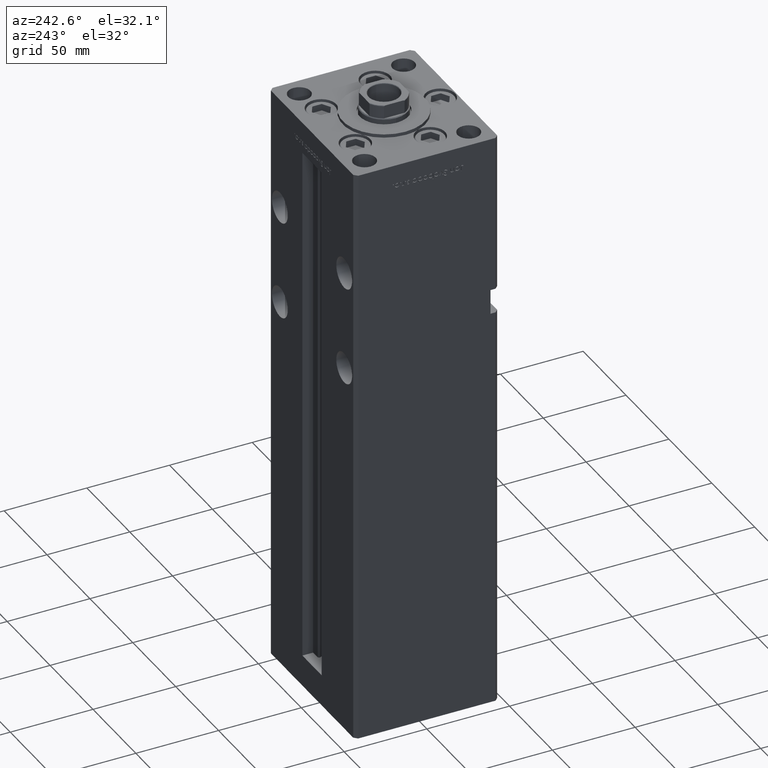
[diagram: clean part render]
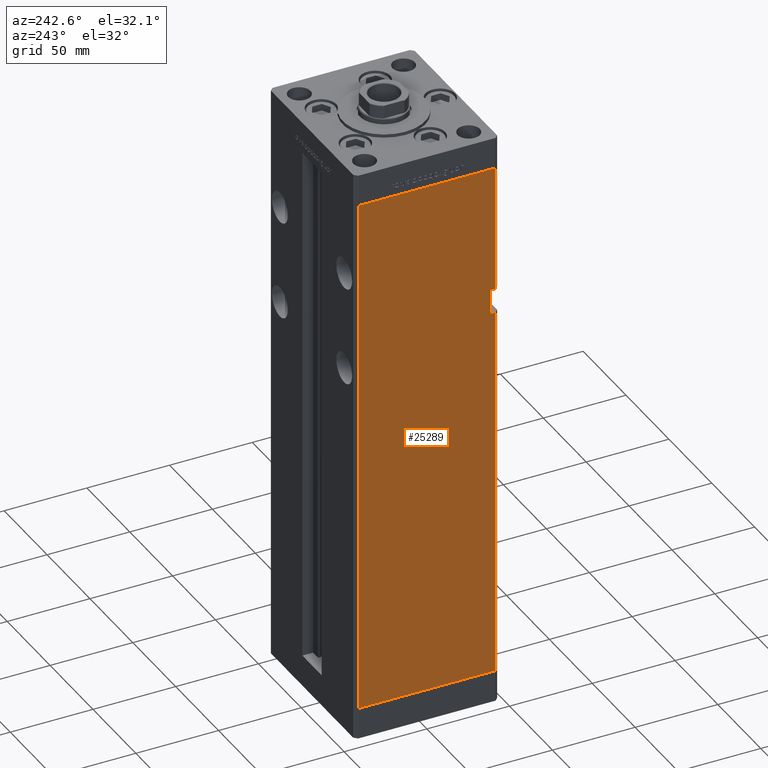
[diagram: same view with one face highlighted and labeled with its STEP entity id]
A machine part, auxiliary view. The second image highlights one B-rep face of the part: STEP entity #25289.
In plain terms, the highlighted planar face has unit normal (1, 0, 0).
Its self-contained STEP definition (entity closure, byte-faithful):
#417 = VECTOR ( 'NONE', #6533, 1000.000000000000000 ) ;
#996 = EDGE_CURVE ( 'NONE', #20275, #19002, #26012, .T. ) ;
#1216 = CARTESIAN_POINT ( 'NONE',  ( -49.99999999999998579, -41.49999999999999289, 226.9999999999999716 ) ) ;
#1223 = CARTESIAN_POINT ( 'NONE',  ( -50.00000000000001421, 41.49999999999999289, 0.000000000000000000 ) ) ;
#1365 = CARTESIAN_POINT ( 'NONE',  ( -50.00000000000001421, 41.49999999999999289, 318.5000000000000000 ) ) ;
#2170 = ORIENTED_EDGE ( 'NONE', *, *, #29306, .T. ) ;
#3511 = CARTESIAN_POINT ( 'NONE',  ( -50.00000000000001421, 41.49999999999999289, 318.5000000000000000 ) ) ;
#3694 = CARTESIAN_POINT ( 'NONE',  ( -49.99999999999998579, -41.49999999999999289, 318.5000000000000000 ) ) ;
#4056 = EDGE_CURVE ( 'NONE', #37203, #4978, #44536, .T. ) ;
#4126 = VECTOR ( 'NONE', #5067, 1000.000000000000000 ) ;
#4847 = EDGE_CURVE ( 'NONE', #45898, #20275, #41851, .T. ) ;
#4899 = LINE ( 'NONE', #17533, #46280 ) ;
#4978 = VERTEX_POINT ( 'NONE', #37499 ) ;
#5067 = DIRECTION ( 'NONE',  ( -0.000000000000000000, -0.000000000000000000, -1.000000000000000000 ) ) ;
#5978 = FACE_OUTER_BOUND ( 'NONE', #40820, .T. ) ;
#6533 = DIRECTION ( 'NONE',  ( -0.000000000000000000, -1.000000000000000000, -0.000000000000000000 ) ) ;
#8519 = DIRECTION ( 'NONE',  ( 3.344045254895050973E-16, -1.000000000000000000, 0.000000000000000000 ) ) ;
#9628 = ORIENTED_EDGE ( 'NONE', *, *, #42697, .F. ) ;
#11094 = VECTOR ( 'NONE', #17138, 1000.000000000000000 ) ;
#13409 = CARTESIAN_POINT ( 'NONE',  ( -50.00000000000001421, 41.49999999999999289, 0.000000000000000000 ) ) ;
#13578 = ORIENTED_EDGE ( 'NONE', *, *, #51968, .F. ) ;
#13954 = EDGE_CURVE ( 'NONE', #42982, #19002, #46093, .T. ) ;
#13986 = VERTEX_POINT ( 'NONE', #50387 ) ;
#14053 = CARTESIAN_POINT ( 'NONE',  ( -50.00000000000001421, 41.49999999999999289, 318.5000000000000000 ) ) ;
#15839 = ORIENTED_EDGE ( 'NONE', *, *, #996, .F. ) ;
#17138 = DIRECTION ( 'NONE',  ( -0.000000000000000000, -0.000000000000000000, -1.000000000000000000 ) ) ;
#17533 = CARTESIAN_POINT ( 'NONE',  ( -49.99999999999998579, -38.50000000000000000, 242.0000000000000000 ) ) ;
#18821 = DIRECTION ( 'NONE',  ( 3.344045254895050973E-16, -1.000000000000000000, 0.000000000000000000 ) ) ;
#19002 = VERTEX_POINT ( 'NONE', #40532 ) ;
#20275 = VERTEX_POINT ( 'NONE', #1216 ) ;
#20542 = VECTOR ( 'NONE', #35741, 1000.000000000000000 ) ;
#21811 = DIRECTION ( 'NONE',  ( 0.000000000000000000, 0.000000000000000000, -1.000000000000000000 ) ) ;
#22591 = LINE ( 'NONE', #1365, #23097 ) ;
#23097 = VECTOR ( 'NONE', #18821, 1000.000000000000000 ) ;
#23606 = AXIS2_PLACEMENT_3D ( 'NONE', #14053, #26930, #25868 ) ;
#25289 = ADVANCED_FACE ( 'NONE', ( #5978 ), #34718, .F. ) ;
#25868 = DIRECTION ( 'NONE',  ( -3.344045254895050480E-16, 1.000000000000000000, 0.000000000000000000 ) ) ;
#26012 = LINE ( 'NONE', #33031, #4126 ) ;
#26930 = DIRECTION ( 'NONE',  ( 1.000000000000000000, 3.344045254895050480E-16, -0.000000000000000000 ) ) ;
#29306 = EDGE_CURVE ( 'NONE', #13986, #4978, #43080, .T. ) ;
#31938 = CARTESIAN_POINT ( 'NONE',  ( -49.99999999999998579, -41.49999999999999289, 318.5000000000000000 ) ) ;
#32616 = ORIENTED_EDGE ( 'NONE', *, *, #13954, .T. ) ;
#33031 = CARTESIAN_POINT ( 'NONE',  ( -49.99999999999998579, -41.49999999999999289, 318.5000000000000000 ) ) ;
#33261 = DIRECTION ( 'NONE',  ( -0.000000000000000000, -1.000000000000000000, -0.000000000000000000 ) ) ;
#33813 = CARTESIAN_POINT ( 'NONE',  ( -49.99999999999998579, -38.50000000000000000, 226.9999999999999716 ) ) ;
#34516 = VERTEX_POINT ( 'NONE', #34989 ) ;
#34718 = PLANE ( 'NONE',  #23606 ) ;
#34766 = ORIENTED_EDGE ( 'NONE', *, *, #51196, .T. ) ;
#34989 = CARTESIAN_POINT ( 'NONE',  ( -50.00000000000001421, 41.49999999999999289, 318.5000000000000000 ) ) ;
#35741 = DIRECTION ( 'NONE',  ( -0.000000000000000000, -0.000000000000000000, -1.000000000000000000 ) ) ;
#37203 = VERTEX_POINT ( 'NONE', #31938 ) ;
#37242 = ORIENTED_EDGE ( 'NONE', *, *, #4056, .F. ) ;
#37499 = CARTESIAN_POINT ( 'NONE',  ( -49.99999999999998579, -41.49999999999999289, 242.0000000000000000 ) ) ;
#40532 = CARTESIAN_POINT ( 'NONE',  ( -49.99999999999998579, -41.49999999999999289, 0.000000000000000000 ) ) ;
#40820 = EDGE_LOOP ( 'NONE', ( #15839, #49801, #13578, #2170, #37242, #9628, #34766, #32616 ) ) ;
#41851 = LINE ( 'NONE', #50186, #48844 ) ;
#42697 = EDGE_CURVE ( 'NONE', #34516, #37203, #22591, .T. ) ;
#42953 = VECTOR ( 'NONE', #8519, 1000.000000000000000 ) ;
#42982 = VERTEX_POINT ( 'NONE', #13409 ) ;
#43080 = LINE ( 'NONE', #46311, #417 ) ;
#44536 = LINE ( 'NONE', #3694, #11094 ) ;
#45898 = VERTEX_POINT ( 'NONE', #33813 ) ;
#46093 = LINE ( 'NONE', #1223, #42953 ) ;
#46280 = VECTOR ( 'NONE', #21811, 1000.000000000000000 ) ;
#46311 = CARTESIAN_POINT ( 'NONE',  ( -49.99999999999998579, -38.50000000000000000, 242.0000000000000000 ) ) ;
#48844 = VECTOR ( 'NONE', #33261, 1000.000000000000000 ) ;
#49801 = ORIENTED_EDGE ( 'NONE', *, *, #4847, .F. ) ;
#50186 = CARTESIAN_POINT ( 'NONE',  ( -49.99999999999998579, -38.50000000000000000, 226.9999999999999716 ) ) ;
#50387 = CARTESIAN_POINT ( 'NONE',  ( -49.99999999999998579, -38.50000000000000000, 242.0000000000000000 ) ) ;
#51196 = EDGE_CURVE ( 'NONE', #34516, #42982, #52963, .T. ) ;
#51968 = EDGE_CURVE ( 'NONE', #13986, #45898, #4899, .T. ) ;
#52963 = LINE ( 'NONE', #3511, #20542 ) ;